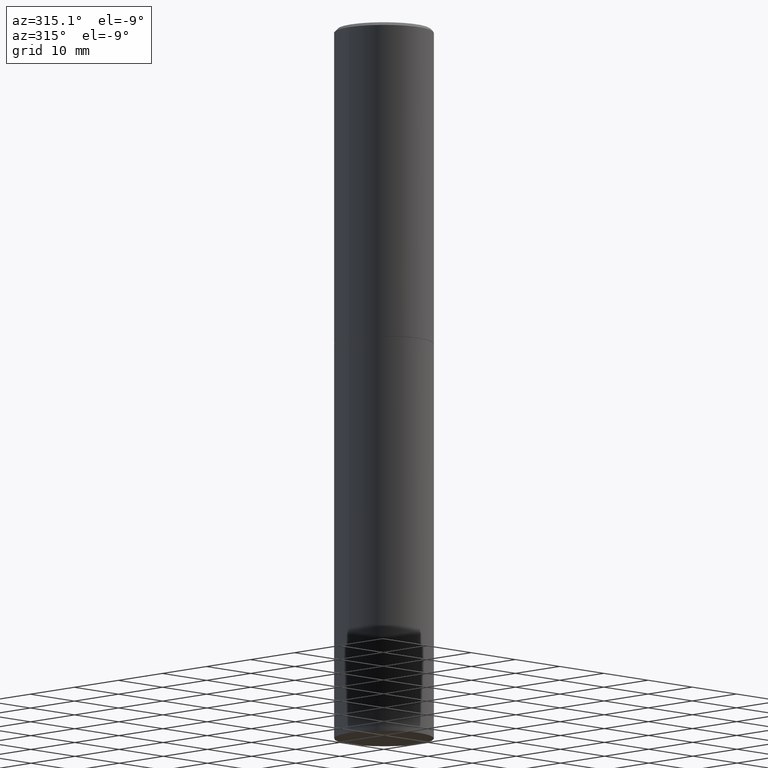
[diagram: clean part render]
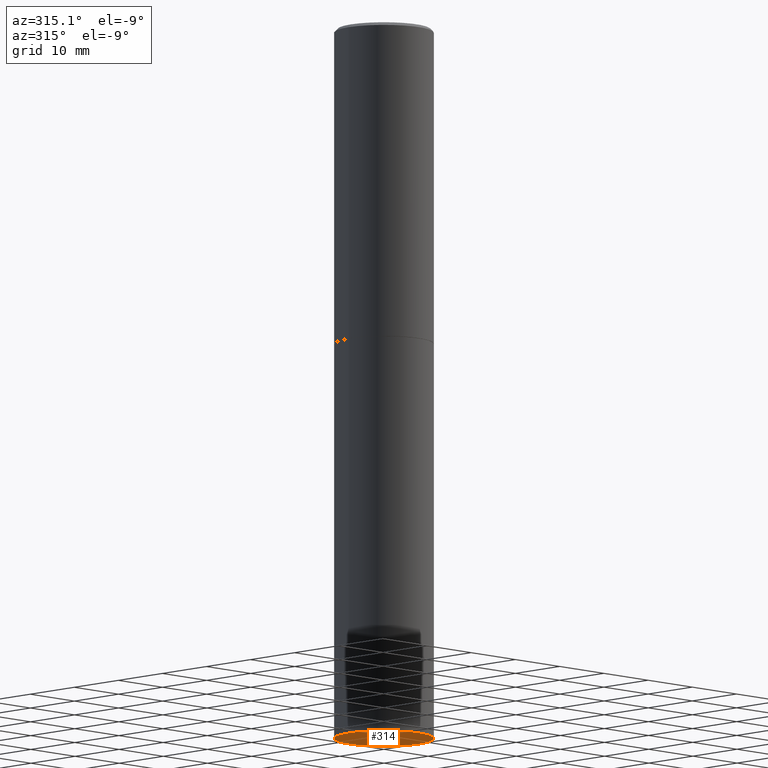
[diagram: same view with one face highlighted and labeled with its STEP entity id]
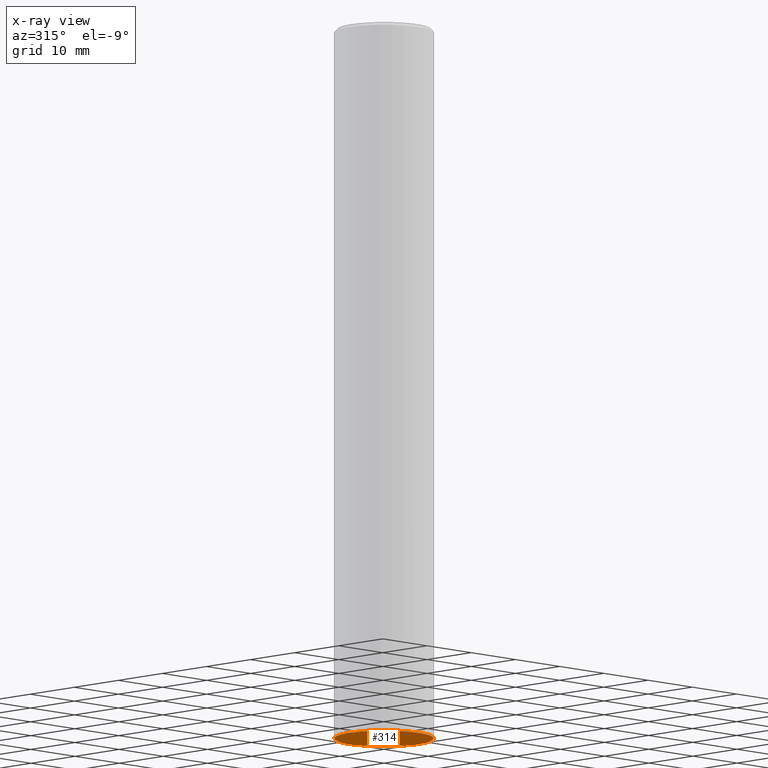
[diagram: x-ray of the same camera — body ghosted, the highlighted face saturated]
A machine part, auxiliary view. The second image highlights one B-rep face of the part: STEP entity #314.
The next image is the same camera in x-ray: the body ghosted, the highlighted face saturated — about 0% of this face is hidden behind the body in this view.
In plain terms, the highlighted planar face has unit normal (0, -0, -1).
Its self-contained STEP definition (entity closure, byte-faithful):
#6 = DIRECTION ( 'NONE',  ( -2.445468806185136597E-29, 3.491481338843145583E-15, 1.000000000000000000 ) ) ;
#21 = DIRECTION ( 'NONE',  ( -2.445468806185136597E-29, 3.491481338843145583E-15, 1.000000000000000000 ) ) ;
#30 = ORIENTED_EDGE ( 'NONE', *, *, #350, .F. ) ;
#49 = CIRCLE ( 'NONE', #147, 0.3149500000000000077 ) ;
#51 = CARTESIAN_POINT ( 'NONE',  ( 1.107210456688382298E-28, -1.580803090974622389E-14, -4.527599999999999625 ) ) ;
#53 = EDGE_LOOP ( 'NONE', ( #30, #180 ) ) ;
#64 = CIRCLE ( 'NONE', #293, 0.3149500000000000077 ) ;
#70 = AXIS2_PLACEMENT_3D ( 'NONE', #97, #262, #340 ) ;
#97 = CARTESIAN_POINT ( 'NONE',  ( 2.199284095337399917E-15, 0.3149499999999842426, -4.527600000000000513 ) ) ;
#126 = EDGE_CURVE ( 'NONE', #167, #357, #49, .T. ) ;
#147 = AXIS2_PLACEMENT_3D ( 'NONE', #51, #21, #238 ) ;
#167 = VERTEX_POINT ( 'NONE', #318 ) ;
#180 = ORIENTED_EDGE ( 'NONE', *, *, #126, .F. ) ;
#183 = FACE_OUTER_BOUND ( 'NONE', #53, .T. ) ;
#238 = DIRECTION ( 'NONE',  ( 1.000000000000000000, -6.982962677686269866E-15, 0.000000000000000000 ) ) ;
#262 = DIRECTION ( 'NONE',  ( 2.438088387897960049E-29, -3.491481338843145188E-15, -1.000000000000000000 ) ) ;
#263 = CARTESIAN_POINT ( 'NONE',  ( 0.3149500000000000077, -1.800731500508351534E-14, -4.527599999999999625 ) ) ;
#267 = CARTESIAN_POINT ( 'NONE',  ( 1.107210456688382298E-28, -1.580803090974622389E-14, -4.527599999999999625 ) ) ;
#293 = AXIS2_PLACEMENT_3D ( 'NONE', #267, #6, #341 ) ;
#314 = ADVANCED_FACE ( 'NONE', ( #183 ), #336, .T. ) ;
#318 = CARTESIAN_POINT ( 'NONE',  ( -0.3149500000000000077, -9.171433798728249845E-15, -4.527599999999999625 ) ) ;
#336 = PLANE ( 'NONE',  #70 ) ;
#340 = DIRECTION ( 'NONE',  ( -1.000000000000000000, 6.982962677686265922E-15, -4.876176775795935793E-29 ) ) ;
#341 = DIRECTION ( 'NONE',  ( 1.000000000000000000, -6.982962677686269866E-15, 0.000000000000000000 ) ) ;
#350 = EDGE_CURVE ( 'NONE', #357, #167, #64, .T. ) ;
#357 = VERTEX_POINT ( 'NONE', #263 ) ;